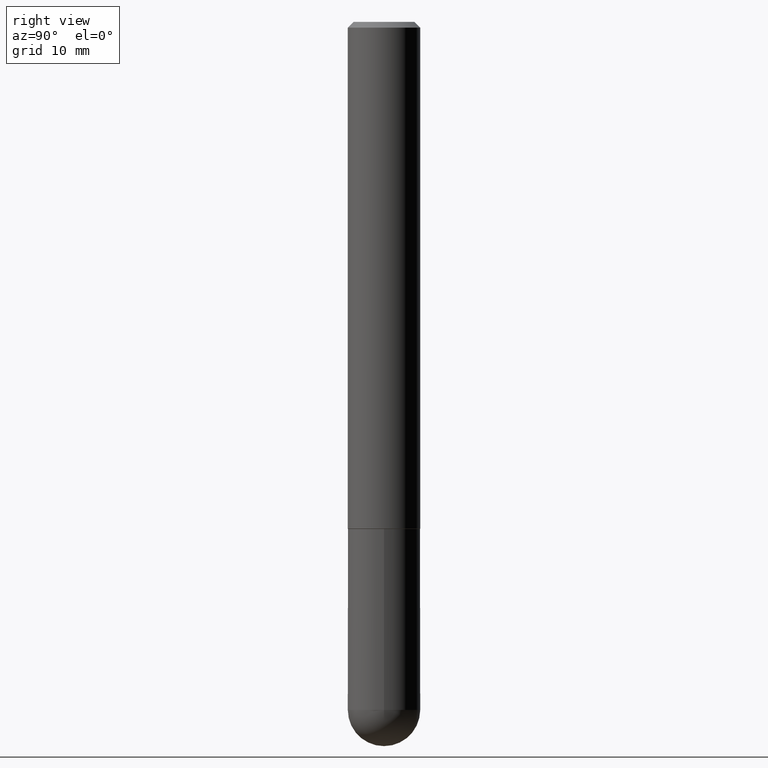
[diagram: clean part render]
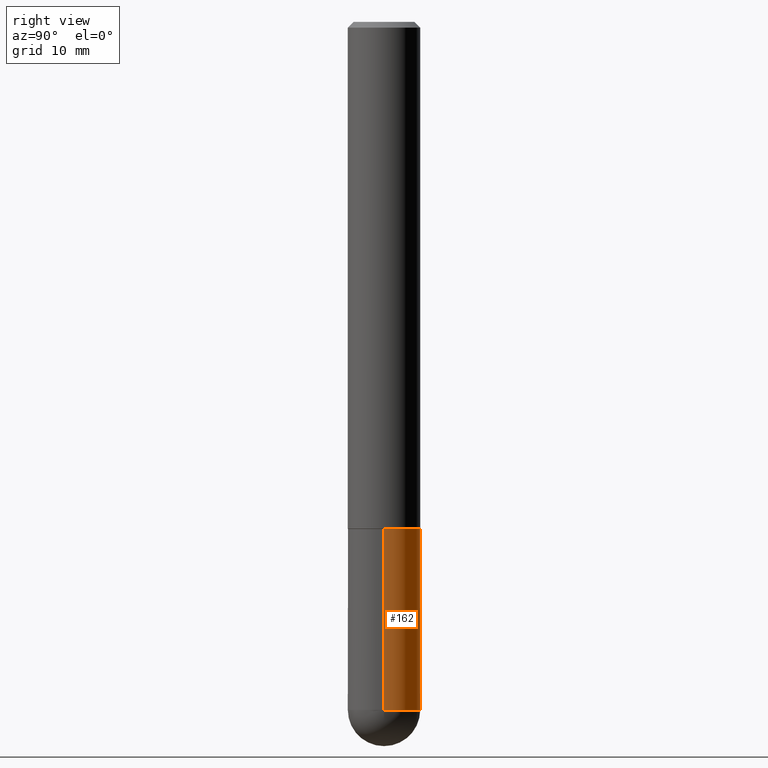
[diagram: same view with one face highlighted and labeled with its STEP entity id]
A machine part, right view. The second image highlights one B-rep face of the part: STEP entity #162.
In plain terms, the highlighted cylindrical surface (edge-blend (fillet) strip) has radius 3.175 mm, axis along (-0, 0, 1).
Its self-contained STEP definition (entity closure, byte-faithful):
#3 = CARTESIAN_POINT ( 'NONE',  ( 5.807988414689700538E-29, -8.292268179752471696E-15, -2.375000000000000000 ) ) ;
#7 = EDGE_CURVE ( 'NONE', #180, #252, #326, .T. ) ;
#10 = CARTESIAN_POINT ( 'NONE',  ( 0.1250000000000000000, -8.728703347107833388E-16, 6.095220969744919741E-30 ) ) ;
#19 = ORIENTED_EDGE ( 'NONE', *, *, #324, .T. ) ;
#41 = CIRCLE ( 'NONE', #186, 0.1250000000000000000 ) ;
#44 = DIRECTION ( 'NONE',  ( 1.000000000000000000, -6.982962677686266711E-15, 4.876176775795935793E-29 ) ) ;
#58 = EDGE_CURVE ( 'NONE', #252, #59, #291, .T. ) ;
#59 = VERTEX_POINT ( 'NONE', #298 ) ;
#67 = ORIENTED_EDGE ( 'NONE', *, *, #268, .F. ) ;
#93 = ORIENTED_EDGE ( 'NONE', *, *, #58, .T. ) ;
#96 = DIRECTION ( 'NONE',  ( -2.445468806185136597E-29, 3.491481338843145583E-15, 1.000000000000000000 ) ) ;
#104 = DIRECTION ( 'NONE',  ( 1.000000000000000000, -6.982962677686270655E-15, 0.000000000000000000 ) ) ;
#121 = ORIENTED_EDGE ( 'NONE', *, *, #356, .F. ) ;
#132 = DIRECTION ( 'NONE',  ( -2.445468806185136597E-29, 3.491481338843145583E-15, 1.000000000000000000 ) ) ;
#135 = DIRECTION ( 'NONE',  ( -2.445468806185136597E-29, 3.491481338843145583E-15, 1.000000000000000000 ) ) ;
#145 = CIRCLE ( 'NONE', #202, 0.1250000000000000000 ) ;
#158 = ORIENTED_EDGE ( 'NONE', *, *, #7, .T. ) ;
#162 = ADVANCED_FACE ( 'NONE', ( #359 ), #325, .T. ) ;
#172 = CARTESIAN_POINT ( 'NONE',  ( 8.728703347108403340E-16, 0.1249999999999915623, -2.375000000000000888 ) ) ;
#180 = VERTEX_POINT ( 'NONE', #172 ) ;
#181 = CARTESIAN_POINT ( 'NONE',  ( 4.279570410823989044E-29, -6.110092342975505460E-15, -1.750000000000000222 ) ) ;
#184 = AXIS2_PLACEMENT_3D ( 'NONE', #3, #132, #104 ) ;
#185 = DIRECTION ( 'NONE',  ( 1.000000000000000000, -6.982962677686262766E-15, 0.000000000000000000 ) ) ;
#186 = AXIS2_PLACEMENT_3D ( 'NONE', #181, #346, #185 ) ;
#202 = AXIS2_PLACEMENT_3D ( 'NONE', #313, #96, #343 ) ;
#218 = CARTESIAN_POINT ( 'NONE',  ( 0.1250000000000000000, -8.074050596074771916E-15, -2.375000000000000000 ) ) ;
#222 = CARTESIAN_POINT ( 'NONE',  ( -0.1250000000000000000, 8.881784197001252323E-16, -6.148668862818632227E-30 ) ) ;
#227 = DIRECTION ( 'NONE',  ( -2.445468806185136877E-29, 3.491481338843145188E-15, 1.000000000000000000 ) ) ;
#234 = CARTESIAN_POINT ( 'NONE',  ( 0.000000000000000000, 0.000000000000000000, 0.000000000000000000 ) ) ;
#252 = VERTEX_POINT ( 'NONE', #269 ) ;
#261 = EDGE_LOOP ( 'NONE', ( #158, #93, #121, #67, #19 ) ) ;
#264 = VECTOR ( 'NONE', #227, 39.37007874015748143 ) ;
#268 = EDGE_CURVE ( 'NONE', #341, #401, #362, .T. ) ;
#269 = CARTESIAN_POINT ( 'NONE',  ( -0.1250000000000000000, -6.313001841663864134E-15, -2.375000000000000000 ) ) ;
#275 = CARTESIAN_POINT ( 'NONE',  ( 0.1250000000000000000, -6.982962677686288010E-15, -1.750000000000000222 ) ) ;
#291 = LINE ( 'NONE', #222, #264 ) ;
#298 = CARTESIAN_POINT ( 'NONE',  ( -0.1250000000000000000, -6.313001841663863345E-15, -1.750000000000000222 ) ) ;
#308 = AXIS2_PLACEMENT_3D ( 'NONE', #234, #135, #44 ) ;
#313 = CARTESIAN_POINT ( 'NONE',  ( 5.807988414689700538E-29, -8.292268179752471696E-15, -2.375000000000000000 ) ) ;
#324 = EDGE_CURVE ( 'NONE', #341, #180, #145, .T. ) ;
#325 = CYLINDRICAL_SURFACE ( 'NONE', #308, 0.1250000000000000000 ) ;
#326 = CIRCLE ( 'NONE', #184, 0.1250000000000000000 ) ;
#341 = VERTEX_POINT ( 'NONE', #218 ) ;
#343 = DIRECTION ( 'NONE',  ( 1.000000000000000000, -6.982962677686270655E-15, 0.000000000000000000 ) ) ;
#346 = DIRECTION ( 'NONE',  ( -2.445468806185136597E-29, 3.491481338843145583E-15, 1.000000000000000000 ) ) ;
#356 = EDGE_CURVE ( 'NONE', #401, #59, #41, .T. ) ;
#359 = FACE_OUTER_BOUND ( 'NONE', #261, .T. ) ;
#362 = LINE ( 'NONE', #10, #368 ) ;
#366 = DIRECTION ( 'NONE',  ( -2.445468806185136877E-29, 3.491481338843145188E-15, 1.000000000000000000 ) ) ;
#368 = VECTOR ( 'NONE', #366, 39.37007874015748143 ) ;
#401 = VERTEX_POINT ( 'NONE', #275 ) ;